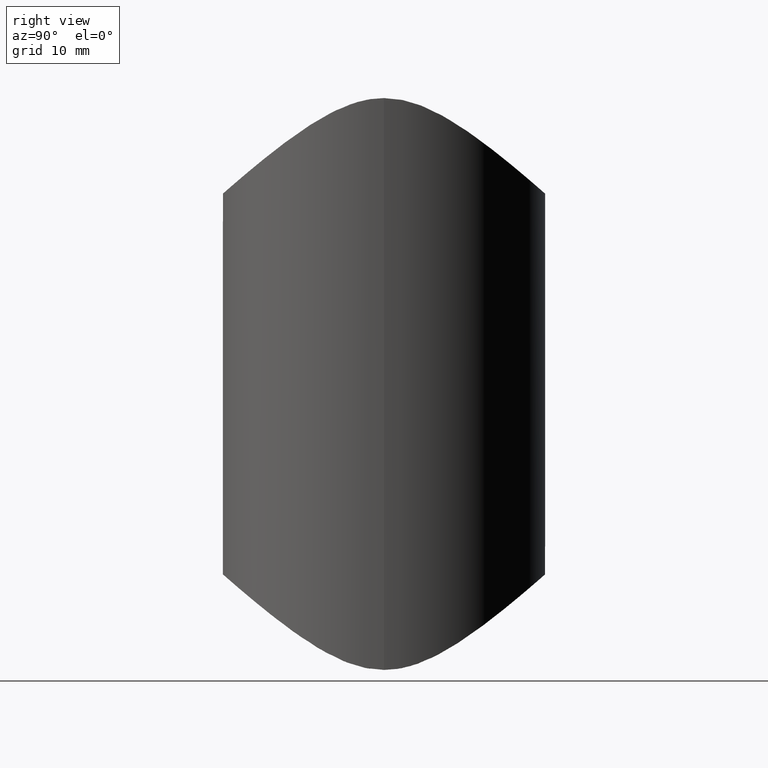
[diagram: clean part render]
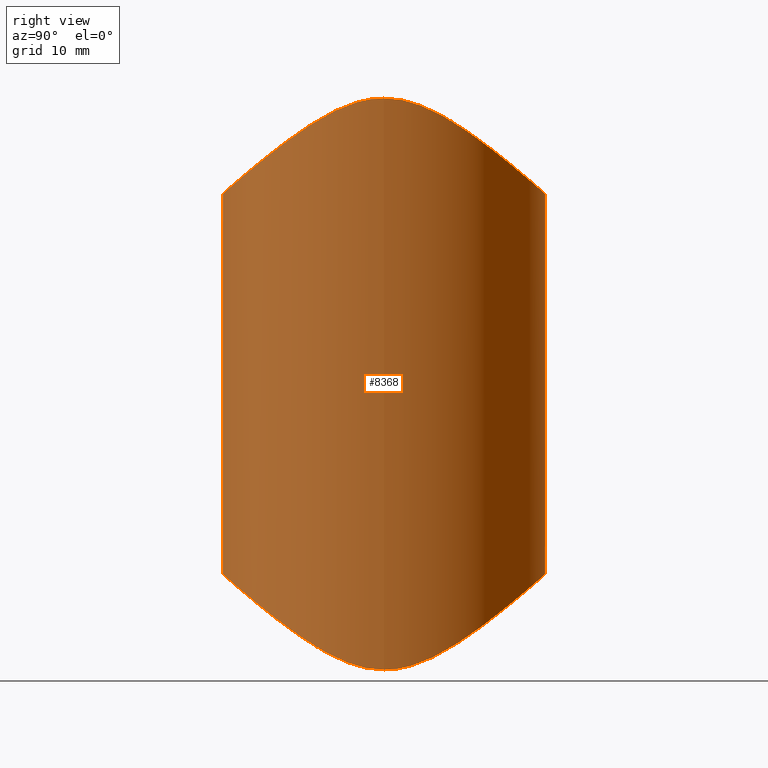
[diagram: same view with one face highlighted and labeled with its STEP entity id]
A machine part, right view. The second image highlights one B-rep face of the part: STEP entity #8368.
In plain terms, the highlighted cylindrical surface (bore or boss wall) has radius 21.2 mm, axis along (0, 0, 1).
Its self-contained STEP definition (entity closure, byte-faithful):
#28 = CARTESIAN_POINT ( 'NONE',  ( -20.45541735194242960, 5.611173856344452204, -36.30723599468177554 ) ) ;
#78 = CARTESIAN_POINT ( 'NONE',  ( 14.81171923180426475, -15.18147543748701089, -30.06661201293681884 ) ) ;
#127 = CARTESIAN_POINT ( 'NONE',  ( -20.97635834696325929, -3.158545356204248922, -37.18151495239143856 ) ) ;
#172 = CARTESIAN_POINT ( 'NONE',  ( 15.63389383173102409, 14.33342034139705312, -30.73406332649879147 ) ) ;
#212 = CARTESIAN_POINT ( 'NONE',  ( 21.14836757930289934, 1.527087688503404816, -37.48934459721699142 ) ) ;
#262 = CARTESIAN_POINT ( 'NONE',  ( -9.055718434051099663, 19.17189410041115138, -26.75941458075507384 ) ) ;
#270 = CARTESIAN_POINT ( 'NONE',  ( -18.92877723315593741, 9.635848647165380143, 34.12689449167132949 ) ) ;
#311 = CARTESIAN_POINT ( 'NONE',  ( -18.30954737960177781, 10.76482312935650754, 33.36712507464898181 ) ) ;
#360 = ORIENTED_EDGE ( 'NONE', *, *, #5655, .F. ) ;
#395 = CARTESIAN_POINT ( 'NONE',  ( -1.379351382647280300, 21.16843550293391374, 25.02773133158973096 ) ) ;
#400 = CARTESIAN_POINT ( 'NONE',  ( 20.88149335484289537, -3.678990019096605835, -37.01745075639204430 ) ) ;
#443 = CARTESIAN_POINT ( 'NONE',  ( 20.59421893871964571, 5.081957251331889580, 36.53320584653805270 ) ) ;
#493 = CARTESIAN_POINT ( 'NONE',  ( -21.17139254519066682, -1.327900722634574704, 37.53032838118427605 ) ) ;
#537 = CARTESIAN_POINT ( 'NONE',  ( 9.776366241319019323, -18.82411369512748323, 27.05708157620545151 ) ) ;
#748 = CYLINDRICAL_SURFACE ( 'NONE', #9045, 21.19999999999999929 ) ;
#764 = CARTESIAN_POINT ( 'NONE',  ( -21.06282559943587884, -2.436221136448928792, 37.33537302850128015 ) ) ;
#806 = CARTESIAN_POINT ( 'NONE',  ( 11.57557648746820256, -17.77401718948303611, 27.94502558068056430 ) ) ;
#849 = CARTESIAN_POINT ( 'NONE',  ( 2.861955765926955664, -21.01963759934508147, 25.15820244223009894 ) ) ;
#981 = CARTESIAN_POINT ( 'NONE',  ( -18.30954737960177781, -10.76482312935650754, -33.36712507464898181 ) ) ;
#1019 = CARTESIAN_POINT ( 'NONE',  ( 21.18705007545193908, -0.7651361944628329859, 37.55985221934160734 ) ) ;
#1022 = CARTESIAN_POINT ( 'NONE',  ( -19.04726911328290839, 9.403061671351830242, -34.27748823128799671 ) ) ;
#1070 = CARTESIAN_POINT ( 'NONE',  ( -3.613022005524567870, -20.89318663543611265, -25.26889897083148284 ) ) ;
#1116 = CARTESIAN_POINT ( 'NONE',  ( -19.70897052989556286, -7.837316334376738247, -35.18678288087188122 ) ) ;
#1159 = CARTESIAN_POINT ( 'NONE',  ( -19.94419146322033498, -7.219722584351009331, -35.52663442060294585 ) ) ;
#1206 = CARTESIAN_POINT ( 'NONE',  ( 20.99808804751278402, 3.012252433823545683, -37.21980758918370213 ) ) ;
#1255 = CARTESIAN_POINT ( 'NONE',  ( 19.98206215831096699, 7.115016007147703547, -35.58225467785896257 ) ) ;
#1298 = CARTESIAN_POINT ( 'NONE',  ( 17.26894050692188287, 12.31449342644356726, -32.25960162156351174 ) ) ;
#1304 = CARTESIAN_POINT ( 'NONE',  ( 21.04311487925438939, 2.600411042969253295, 37.30026941153323605 ) ) ;
#1343 = CARTESIAN_POINT ( 'NONE',  ( 0.5992993401474279169, 21.20478202979933968, -24.99580213603888978 ) ) ;
#1351 = CARTESIAN_POINT ( 'NONE',  ( -16.04934571228516660, 13.91195018205657874, 31.06685218863818321 ) ) ;
#1390 = CARTESIAN_POINT ( 'NONE',  ( 20.88157022807383711, 3.730151578770625864, -37.01460156782884070 ) ) ;
#1401 = CARTESIAN_POINT ( 'NONE',  ( 14.33064357019541823, 15.63693189086025370, 29.70180932424991838 ) ) ;
#1444 = CARTESIAN_POINT ( 'NONE',  ( -9.783719388593979716, 18.86114355684420474, 27.02669751896622685 ) ) ;
#1465 = CARTESIAN_POINT ( 'NONE',  ( 21.19999999999999929, 0.000000000000000000, -37.58356148159686683 ) ) ;
#1488 = CARTESIAN_POINT ( 'NONE',  ( 18.35738798289526841, 10.62389000726081711, 33.45083591808911905 ) ) ;
#1537 = CARTESIAN_POINT ( 'NONE',  ( -21.13600295169353060, 1.688561807819356719, 37.46692591776143644 ) ) ;
#1583 = CARTESIAN_POINT ( 'NONE',  ( -3.875882088453081575, -20.84607472227184388, 25.31010850980709748 ) ) ;
#1794 = CARTESIAN_POINT ( 'NONE',  ( -1.646797548463641236, -21.14920743253038538, 25.04461009978417962 ) ) ;
#1834 = CARTESIAN_POINT ( 'NONE',  ( -21.19613358253339896, 0.5540781783344641553, 37.57647572910654787 ) ) ;
#1879 = CARTESIAN_POINT ( 'NONE',  ( -4.244829350413260372, -20.77400722764772922, 25.37311363479035009 ) ) ;
#2013 = CARTESIAN_POINT ( 'NONE',  ( -21.18264441055352165, -0.9367163545436431038, -37.55170630820558131 ) ) ;
#2059 = CARTESIAN_POINT ( 'NONE',  ( -17.00333266243377395, 12.67859107400535912, -31.99141052322285361 ) ) ;
#2103 = CARTESIAN_POINT ( 'NONE',  ( -20.05044987211626406, 6.920175649073071256, -35.68374045013990781 ) ) ;
#2148 = CARTESIAN_POINT ( 'NONE',  ( 9.307140707012017344, -19.06107999430647126, -26.85459706639172239 ) ) ;
#2199 = CARTESIAN_POINT ( 'NONE',  ( -21.06282559943587884, 2.436221136448928792, -37.33537302850128015 ) ) ;
#2244 = CARTESIAN_POINT ( 'NONE',  ( 16.88200995086582168, 12.83973443144087412, -31.87191521375912373 ) ) ;
#2287 = CARTESIAN_POINT ( 'NONE',  ( 21.18705007545193908, 0.7651361944628329859, -37.55985221934160734 ) ) ;
#2329 = CARTESIAN_POINT ( 'NONE',  ( 20.41661273894700201, -5.749981230559308543, -36.24556862858850081 ) ) ;
#2333 = CARTESIAN_POINT ( 'NONE',  ( 20.57309299853876183, 5.129438940379522194, -36.50090606750470812 ) ) ;
#2341 = CARTESIAN_POINT ( 'NONE',  ( 9.307140707012017344, 19.06107999430647126, 26.85459706639172239 ) ) ;
#2381 = CARTESIAN_POINT ( 'NONE',  ( 1.351634497376328126, 21.17047566304135131, -25.02594095006732999 ) ) ;
#2436 = CARTESIAN_POINT ( 'NONE',  ( 20.81536095300337408, 4.035812705794620037, 36.90402268098335981 ) ) ;
#2479 = CARTESIAN_POINT ( 'NONE',  ( 19.77521756840306821, 7.669338922180779505, 35.28076052837283783 ) ) ;
#2532 = CARTESIAN_POINT ( 'NONE',  ( -3.977638343958846079, 20.82676644983990144, 25.32699950302857772 ) ) ;
#2575 = CARTESIAN_POINT ( 'NONE',  ( -20.97635834696325929, 3.158545356204248922, 37.18151495239143856 ) ) ;
#2617 = CARTESIAN_POINT ( 'NONE',  ( 17.26894050692188287, -12.31449342644356726, 32.25960162156351174 ) ) ;
#2853 = CARTESIAN_POINT ( 'NONE',  ( -11.20650900769450686, -18.00919104853148411, 27.74720752538118163 ) ) ;
#2898 = CARTESIAN_POINT ( 'NONE',  ( 14.26758304632109109, -15.73462341832112088, 29.63000989669030005 ) ) ;
#2941 = CARTESIAN_POINT ( 'NONE',  ( 18.35259929000589096, -10.69178739157260871, 33.41716637868228190 ) ) ;
#3079 = CARTESIAN_POINT ( 'NONE',  ( -20.84335338306961205, 3.888697776966783426, -36.95177541651901265 ) ) ;
#3124 = CARTESIAN_POINT ( 'NONE',  ( -15.76577616875666621, 14.18836793598355506, -30.84682178562772137 ) ) ;
#3169 = CARTESIAN_POINT ( 'NONE',  ( -13.41327811795208724, 16.47184304281853073, -29.02748098906725360 ) ) ;
#3214 = CARTESIAN_POINT ( 'NONE',  ( -21.17139254519066682, 1.327900722634574704, -37.53032838118427605 ) ) ;
#3260 = CARTESIAN_POINT ( 'NONE',  ( -2.875685406383693188, -21.00737035516542051, -25.16893772533690310 ) ) ;
#3303 = CARTESIAN_POINT ( 'NONE',  ( 14.26758304632109109, 15.73462341832112088, -29.63000989669030005 ) ) ;
#3345 = FACE_OUTER_BOUND ( 'NONE', #4485, .T. ) ;
#3392 = CARTESIAN_POINT ( 'NONE',  ( 9.146863275391043047, 19.13856882639603540, -26.78829395330530261 ) ) ;
#3401 = CARTESIAN_POINT ( 'NONE',  ( 18.02703324573771582, 11.17478347359660873, 33.07151591960013803 ) ) ;
#3431 = CARTESIAN_POINT ( 'NONE',  ( -10.30975277606171403, 18.52749846274448942, -27.30870390385972257 ) ) ;
#3439 = CARTESIAN_POINT ( 'NONE',  ( 0.8570938160425972674, 21.19576360719491959, 25.00371889231641376 ) ) ;
#3479 = CARTESIAN_POINT ( 'NONE',  ( -6.057539750127689970, 20.37040628734392200, -25.72541600823642227 ) ) ;
#3531 = CARTESIAN_POINT ( 'NONE',  ( 13.32389046653464426, 16.50317929767390623, 28.99873680058485448 ) ) ;
#3574 = CARTESIAN_POINT ( 'NONE',  ( -14.20856944367890229, 15.74784103867825991, 29.61246971191928168 ) ) ;
#3617 = CARTESIAN_POINT ( 'NONE',  ( 20.29439568384519177, -6.139549580194639589, 36.05817013806716886 ) ) ;
#3660 = CARTESIAN_POINT ( 'NONE',  ( -3.134448869397676418, -20.97037251875283204, 25.20134411886764525 ) ) ;
#3883 = CARTESIAN_POINT ( 'NONE',  ( -21.01685719160357735, -2.804839704732406069, 37.25350971382740539 ) ) ;
#3934 = CARTESIAN_POINT ( 'NONE',  ( -17.38037110746649461, -12.15634875530774472, 32.37456891561282646 ) ) ;
#3976 = CARTESIAN_POINT ( 'NONE',  ( -7.428390811851920184, -19.90728424505650196, 26.12846359776445837 ) ) ;
#4112 = CARTESIAN_POINT ( 'NONE',  ( -12.66552224037674712, -17.01437272971189074, -28.57756723657072584 ) ) ;
#4155 = CARTESIAN_POINT ( 'NONE',  ( -20.62931908667947667, 4.937671174590857248, -36.59086201277335704 ) ) ;
#4201 = CARTESIAN_POINT ( 'NONE',  ( -11.77674396363667952, 17.64079681843034919, -28.05656199386481831 ) ) ;
#4249 = CARTESIAN_POINT ( 'NONE',  ( -14.20856944367890229, -15.74784103867825991, -29.61246971191928168 ) ) ;
#4297 = CARTESIAN_POINT ( 'NONE',  ( -16.04934571228516660, -13.91195018205657874, -31.06685218863818321 ) ) ;
#4340 = CARTESIAN_POINT ( 'NONE',  ( 20.29439568384519177, 6.139549580194639589, -36.05817013806716886 ) ) ;
#4381 = CARTESIAN_POINT ( 'NONE',  ( -2.763046046473146777, 21.02250712551965961, -25.15566957285883731 ) ) ;
#4430 = CARTESIAN_POINT ( 'NONE',  ( 19.74765873688392759, 7.739758821920959875, -35.24154086413228981 ) ) ;
#4479 = CARTESIAN_POINT ( 'NONE',  ( 7.154830645487482599, 19.96954630365517147, -26.07288955469422831 ) ) ;
#4485 = EDGE_LOOP ( 'NONE', ( #360 ) ) ;
#4520 = CARTESIAN_POINT ( 'NONE',  ( 21.19740071756693922, 0.3830497548331260327, -37.57879352461026201 ) ) ;
#4528 = CARTESIAN_POINT ( 'NONE',  ( -2.875685406383693188, 21.00737035516542051, 25.16893772533690310 ) ) ;
#4568 = CARTESIAN_POINT ( 'NONE',  ( 21.19999999999999218, -1.165517335421917267E-15, 37.58356148159685262 ) ) ;
#4615 = CARTESIAN_POINT ( 'NONE',  ( -14.68694656133646248, 15.30210980942055699, 29.97042990981162802 ) ) ;
#4664 = CARTESIAN_POINT ( 'NONE',  ( -20.84335338306961205, -3.888697776966783426, 36.95177541651901265 ) ) ;
#4714 = CARTESIAN_POINT ( 'NONE',  ( 9.146863275391043047, -19.13856882639603540, 26.78829395330530261 ) ) ;
#4935 = CARTESIAN_POINT ( 'NONE',  ( -20.45541735194242960, -5.611173856344452204, 36.30723599468177554 ) ) ;
#4985 = CARTESIAN_POINT ( 'NONE',  ( 10.99019997192858256, -18.14221865893225427, 27.63512407793474068 ) ) ;
#5027 = CARTESIAN_POINT ( 'NONE',  ( -18.43835679299217034, -10.54151119859166208, 33.51897155093636371 ) ) ;
#5034 = DIRECTION ( 'NONE',  ( 1.000000000000000000, 0.000000000000000000, 0.000000000000000000 ) ) ;
#5160 = CARTESIAN_POINT ( 'NONE',  ( 1.600552284528295566, -21.15267129505330956, -25.04156937056848875 ) ) ;
#5201 = CARTESIAN_POINT ( 'NONE',  ( 20.65678568497506618, -4.781809977681583668, 36.63836350674345255 ) ) ;
#5202 = CARTESIAN_POINT ( 'NONE',  ( 11.12876944867946527, -18.05727372709984380, -27.70671522967704448 ) ) ;
#5252 = CARTESIAN_POINT ( 'NONE',  ( -14.68694656133646248, -15.30210980942055699, -29.97042990981162802 ) ) ;
#5307 = CARTESIAN_POINT ( 'NONE',  ( -20.54646411576972298, -5.272054584498059526, -36.45531200607298672 ) ) ;
#5352 = CARTESIAN_POINT ( 'NONE',  ( -7.827907481127834188, -19.71471125336513452, -26.29324697376245012 ) ) ;
#5357 = CARTESIAN_POINT ( 'NONE',  ( 16.96650338785485346, -12.77562585898297165, -31.93266644754966777 ) ) ;
#5481 = CARTESIAN_POINT ( 'NONE',  ( -1.646797548463641236, 21.14920743253038538, -25.04461009978417962 ) ) ;
#5488 = CARTESIAN_POINT ( 'NONE',  ( 11.70097173117910216, 17.69122308532080368, 28.01436057573138072 ) ) ;
#5519 = CARTESIAN_POINT ( 'NONE',  ( 10.99019997192858256, 18.14221865893225427, -27.63512407793474068 ) ) ;
#5523 = CARTESIAN_POINT ( 'NONE',  ( -5.059804035448612680, 20.60052458868202407, 25.52461701857541598 ) ) ;
#5572 = CARTESIAN_POINT ( 'NONE',  ( 20.99518966925269225, 2.962050479155550420, 37.21528062210827414 ) ) ;
#5590 = CARTESIAN_POINT ( 'NONE',  ( 21.19999999999999929, 0.000000000000000000, 37.58356148159686683 ) ) ;
#5617 = CARTESIAN_POINT ( 'NONE',  ( 3.084421250912809942, 20.98770154349920958, 25.18618267936977162 ) ) ;
#5655 = EDGE_CURVE ( 'NONE', #8568, #8568, #7539, .T. ) ;
#5657 = CARTESIAN_POINT ( 'NONE',  ( -16.86133393032115890, 12.91574079727568147, 31.82850802484505337 ) ) ;
#5701 = CARTESIAN_POINT ( 'NONE',  ( -10.00391576498438972, -18.69453692488314900, 27.16679903627293058 ) ) ;
#5747 = CARTESIAN_POINT ( 'NONE',  ( 20.39193468106632423, -5.807951388633584955, 36.21088361584384785 ) ) ;
#5763 = CARTESIAN_POINT ( 'NONE',  ( 19.25834572351406493, -8.887863037567727886, -34.57155174949588883 ) ) ;
#5960 = CARTESIAN_POINT ( 'NONE',  ( 5.052017920772577497, -20.60256207620232516, 25.52284085383190515 ) ) ;
#6006 = CARTESIAN_POINT ( 'NONE',  ( -20.62931908667947667, -4.937671174590857248, 36.59086201277335704 ) ) ;
#6045 = CARTESIAN_POINT ( 'NONE',  ( 16.06516379777914594, -13.84816061437718560, 31.10990615289966499 ) ) ;
#6162 = VERTEX_POINT ( 'NONE', #1465 ) ;
#6167 = CARTESIAN_POINT ( 'NONE',  ( -18.92877723315593741, -9.635848647165380143, -34.12689449167132949 ) ) ;
#6210 = CARTESIAN_POINT ( 'NONE',  ( 21.19999999999999218, -1.165517335421917267E-15, 37.58356148159685262 ) ) ;
#6211 = CARTESIAN_POINT ( 'NONE',  ( -21.10295424153486010, -2.059448189816758035, -37.40711882720225390 ) ) ;
#6263 = CARTESIAN_POINT ( 'NONE',  ( -16.86133393032115890, -12.91574079727568147, -31.82850802484505337 ) ) ;
#6303 = CARTESIAN_POINT ( 'NONE',  ( 3.084421250912809942, -20.98770154349920958, -25.18618267936977162 ) ) ;
#6347 = CARTESIAN_POINT ( 'NONE',  ( 5.762301184145830923, 20.41495202547941901, -25.68640025201506205 ) ) ;
#6396 = CARTESIAN_POINT ( 'NONE',  ( 13.26122689838577884, 16.59694229147575228, -28.92496586617463805 ) ) ;
#6435 = CARTESIAN_POINT ( 'NONE',  ( -3.875882088453081575, 20.84607472227184388, -25.31010850980709748 ) ) ;
#6444 = CARTESIAN_POINT ( 'NONE',  ( 21.04311487925438939, -2.600411042969253295, -37.30026941153323605 ) ) ;
#6450 = B_SPLINE_CURVE_WITH_KNOTS ( 'NONE', 3,
 ( #12785, #6614, #9714, #6444, #10851, #400, #8898, #8260, #2329, #13199, #11767, #5763, #8899, #12873, #7013, #5357, #9389, #78, #12334, #8266, #12471, #11287, #5202, #8362, #2148, #11429, #9347, #12382, #6303, #5160, #11330, #11475, #7148, #13344, #3260, #1070, #10443, #7288, #10398, #12425, #5352, #12523, #7233, #4112, #13304, #4249, #5252, #4297, #6263, #981, #6167, #1116, #1159, #11380, #5307, #9209, #127, #6211, #8180, #2013, #7333, #8317, #3214, #2199, #7194, #10310, #3079, #4155, #28, #2103, #10264, #1022, #10349, #8221, #2059, #9254, #3124, #9302, #3169, #4201, #10483, #3431, #12568, #8456, #262, #11614, #3479, #9528, #6435, #10617, #4381, #5481, #9488, #1343, #2381, #11654, #10574, #11524, #6347, #4479, #10660, #3392, #9441, #5519, #8503, #6396, #3303, #172, #12659, #2244, #1298, #7464, #9575, #4430, #1255, #4340, #7372, #2333, #8537, #1390, #1206, #6478, #212, #7415, #2287, #4520, #12704, #8406 ),
 .UNSPECIFIED., .T., .F.,
 ( 4, 2, 2, 2, 2, 2, 2, 2, 2, 2, 2, 2, 2, 2, 2, 2, 2, 2, 2, 2, 2, 2, 2, 2, 2, 2, 2, 2, 2, 2, 2, 2, 2, 2, 2, 2, 2, 2, 2, 2, 2, 2, 2, 2, 2, 2, 2, 2, 2, 2, 2, 2, 2, 2, 2, 2, 2, 2, 2, 2, 2, 2, 2, 4 ),
 ( 0.000000000000000000, 0.002241287828992627809, 0.003361931743488943015, 0.004482575657985257353, 0.006723863486977876489, 0.008965151315970497359, 0.01120643914496311476, 0.01344772697395573216, 0.01793030263194097043, 0.02017159046093358957, 0.02241287828992620870, 0.02465416611891882784, 0.02689545394791144697, 0.03137802960589668871, 0.03361931743488930785, 0.03586060526388192699, 0.03810189309287454612, 0.03922253700737084875, 0.04034318092186715832, 0.04258446875085977745, 0.04482575657985239659, 0.04930833223783762098, 0.05154962006683024706, 0.05379090789582286619, 0.05827348355380809058, 0.06275605921179332192, 0.06499734704078592717, 0.06723863486977853243, 0.06947992269877115157, 0.07060056661326745420, 0.07172121052776375683, 0.07396249835675636208, 0.07508314227125266471, 0.07620378618574895346, 0.07844507401474155872, 0.08068636184373415010, 0.08516893750171937449, 0.08741022533071196587, 0.08965151315970457113, 0.09413408881768976777, 0.09637537664668238691, 0.09749602056117870341, 0.09861666447567500604, 0.1030992401336602443, 0.1042198840481565608, 0.1053405279626528496, 0.1075818157916454548, 0.1098231036206380878, 0.1120643914496306931, 0.1143056792786232845, 0.1165469671076158897, 0.1187882549366084811, 0.1210295427656010725, 0.1255121184235862830, 0.1277534062525788883, 0.1299946940815714935, 0.1344772697395567040, 0.1367185575685493093, 0.1378392014830456258, 0.1389598453975419146, 0.1412011332265345198, 0.1423217771410308086, 0.1428820990982789807, 0.1434424210555271251 ),
 .UNSPECIFIED. ) ;
#6478 = CARTESIAN_POINT ( 'NONE',  ( 21.11770560777527095, 1.902853503920015399, -37.43370011411939657 ) ) ;
#6486 = CARTESIAN_POINT ( 'NONE',  ( 1.600552284528295566, 21.15267129505330956, 25.04156937056848875 ) ) ;
#6534 = CARTESIAN_POINT ( 'NONE',  ( -10.98734972168234592, 18.18173473906200499, 27.60533894899644380 ) ) ;
#6576 = CARTESIAN_POINT ( 'NONE',  ( 20.00715471155248792, 7.043729142430194656, 35.61943515223384082 ) ) ;
#6614 = CARTESIAN_POINT ( 'NONE',  ( 21.19999999999999218, -0.7607316018210188435, -37.58356148159684551 ) ) ;
#6621 = CARTESIAN_POINT ( 'NONE',  ( 21.19999999999999218, 0.7607316018210188435, 37.58356148159684551 ) ) ;
#6632 = ORIENTED_EDGE ( 'NONE', *, *, #11686, .F. ) ;
#6662 = CARTESIAN_POINT ( 'NONE',  ( -20.54646411576972298, 5.272054584498059526, 36.45531200607298672 ) ) ;
#6713 = CARTESIAN_POINT ( 'NONE',  ( -20.05044987211626406, -6.920175649073071256, 35.68374045013990781 ) ) ;
#6755 = CARTESIAN_POINT ( 'NONE',  ( -6.057539750127689970, -20.37040628734392200, 25.72541600823642227 ) ) ;
#6976 = CARTESIAN_POINT ( 'NONE',  ( 7.838284737744062980, -19.71068788427852425, 26.29672239114204757 ) ) ;
#7013 = CARTESIAN_POINT ( 'NONE',  ( 18.02703324573771582, -11.17478347359660873, -33.07151591960013803 ) ) ;
#7018 = CARTESIAN_POINT ( 'NONE',  ( 0.5992993401474279169, -21.20478202979933968, 24.99580213603888978 ) ) ;
#7061 = CARTESIAN_POINT ( 'NONE',  ( 20.99808804751278402, -3.012252433823545683, 37.21980758918370213 ) ) ;
#7148 = CARTESIAN_POINT ( 'NONE',  ( -1.379351382647280300, -21.16843550293391374, -25.02773133158973096 ) ) ;
#7193 = CARTESIAN_POINT ( 'NONE',  ( 21.17929872054909879, -0.9558596785980422172, 37.54567905352975998 ) ) ;
#7194 = CARTESIAN_POINT ( 'NONE',  ( -21.01685719160357735, 2.804839704732406069, -37.25350971382740539 ) ) ;
#7208 = EDGE_LOOP ( 'NONE', ( #6632 ) ) ;
#7233 = CARTESIAN_POINT ( 'NONE',  ( -10.98734972168234592, -18.18173473906200499, -27.60533894899644380 ) ) ;
#7288 = CARTESIAN_POINT ( 'NONE',  ( -5.059804035448612680, -20.60052458868202407, -25.52461701857541598 ) ) ;
#7333 = CARTESIAN_POINT ( 'NONE',  ( -21.19613358253339896, -0.5540781783344641553, -37.57647572910654787 ) ) ;
#7372 = CARTESIAN_POINT ( 'NONE',  ( 20.39193468106632423, 5.807951388633584955, -36.21088361584384785 ) ) ;
#7415 = CARTESIAN_POINT ( 'NONE',  ( 21.17929872054909879, 0.9558596785980422172, -37.54567905352975998 ) ) ;
#7464 = CARTESIAN_POINT ( 'NONE',  ( 18.35259929000589096, 10.69178739157260871, -33.41716637868228190 ) ) ;
#7472 = CARTESIAN_POINT ( 'NONE',  ( 14.81171923180426475, 15.18147543748701089, 30.06661201293681884 ) ) ;
#7515 = CARTESIAN_POINT ( 'NONE',  ( -19.94419146322033498, 7.219722584351009331, 35.52663442060294585 ) ) ;
#7539 = B_SPLINE_CURVE_WITH_KNOTS ( 'NONE', 3,
 ( #4568, #6621, #9586, #1304, #5572, #10582, #2436, #443, #12846, #6576, #2479, #11621, #11661, #1488, #3401, #7555, #9722, #7472, #1401, #3531, #9631, #5488, #7646, #9537, #2341, #11751, #12755, #11795, #5617, #6486, #3439, #10668, #395, #10755, #4528, #11710, #2532, #5523, #7596, #12710, #8632, #1444, #6534, #12667, #9675, #3574, #4615, #1351, #5657, #311, #270, #8508, #7515, #8542, #6662, #13136, #2575, #11838, #1537, #10800, #1834, #12100, #493, #764, #3883, #10085, #4664, #6006, #4935, #6713, #7741, #12887, #5027, #3934, #8717, #13177, #9026, #8046, #7957, #9771, #2853, #10129, #5701, #8759, #10040, #3976, #6755, #1879, #1583, #3660, #11111, #1794, #11074, #7018, #9075, #849, #9814, #5960, #7694, #8987, #6976, #4714, #537, #4985, #806, #12194, #2898, #8004, #6045, #12143, #2617, #2941, #10843, #11877, #11155, #3617, #5747, #12921, #5201, #10213, #7061, #12333, #12424, #7193, #1019, #12281, #9127, #6210 ),
 .UNSPECIFIED., .T., .F.,
 ( 4, 2, 2, 2, 2, 2, 2, 2, 2, 2, 2, 2, 2, 2, 2, 2, 2, 2, 2, 2, 2, 2, 2, 2, 2, 2, 2, 2, 2, 2, 2, 2, 2, 2, 2, 2, 2, 2, 2, 2, 2, 2, 2, 2, 2, 2, 2, 2, 2, 2, 2, 2, 2, 2, 2, 2, 2, 2, 2, 2, 2, 2, 2, 4 ),
 ( 0.000000000000000000, 0.002241287828992627809, 0.003361931743488943015, 0.004482575657985257353, 0.006723863486977876489, 0.008965151315970497359, 0.01120643914496311476, 0.01344772697395573216, 0.01793030263194097043, 0.02017159046093358957, 0.02241287828992620870, 0.02465416611891882784, 0.02689545394791144697, 0.03137802960589668871, 0.03361931743488930785, 0.03586060526388192699, 0.03810189309287454612, 0.03922253700737084875, 0.04034318092186715832, 0.04258446875085977745, 0.04482575657985239659, 0.04930833223783762098, 0.05154962006683024706, 0.05379090789582286619, 0.05827348355380809058, 0.06275605921179332192, 0.06499734704078592717, 0.06723863486977853243, 0.06947992269877115157, 0.07060056661326745420, 0.07172121052776375683, 0.07396249835675636208, 0.07508314227125266471, 0.07620378618574895346, 0.07844507401474155872, 0.08068636184373415010, 0.08516893750171937449, 0.08741022533071196587, 0.08965151315970457113, 0.09413408881768976777, 0.09637537664668238691, 0.09749602056117870341, 0.09861666447567500604, 0.1030992401336602443, 0.1042198840481565608, 0.1053405279626528496, 0.1075818157916454548, 0.1098231036206380878, 0.1120643914496306931, 0.1143056792786232845, 0.1165469671076158897, 0.1187882549366084811, 0.1210295427656010725, 0.1255121184235862830, 0.1277534062525788883, 0.1299946940815714935, 0.1344772697395567040, 0.1367185575685493093, 0.1378392014830456258, 0.1389598453975419146, 0.1412011332265345198, 0.1423217771410308086, 0.1428820990982789807, 0.1434424210555271251 ),
 .UNSPECIFIED. ) ;
#7555 = CARTESIAN_POINT ( 'NONE',  ( 16.96650338785485346, 12.77562585898297165, 31.93266644754966777 ) ) ;
#7596 = CARTESIAN_POINT ( 'NONE',  ( -5.765700953092395054, 20.41380111013800303, 25.68739766642772082 ) ) ;
#7646 = CARTESIAN_POINT ( 'NONE',  ( 11.12876944867946527, 18.05727372709984380, 27.70671522967704448 ) ) ;
#7694 = CARTESIAN_POINT ( 'NONE',  ( 5.762301184145830923, -20.41495202547941901, 25.68640025201506205 ) ) ;
#7741 = CARTESIAN_POINT ( 'NONE',  ( -19.81796637703257957, -7.558585585020083819, 35.34193712264892184 ) ) ;
#7957 = CARTESIAN_POINT ( 'NONE',  ( -13.41327811795208724, -16.47184304281853073, 29.02748098906725360 ) ) ;
#8004 = CARTESIAN_POINT ( 'NONE',  ( 15.63389383173102409, -14.33342034139705312, 30.73406332649879147 ) ) ;
#8046 = CARTESIAN_POINT ( 'NONE',  ( -14.40607568455914489, -15.60842448588200604, 29.73192576045749647 ) ) ;
#8092 = DIRECTION ( 'NONE',  ( 0.000000000000000000, 0.000000000000000000, 1.000000000000000000 ) ) ;
#8180 = CARTESIAN_POINT ( 'NONE',  ( -21.13600295169353060, -1.688561807819356719, -37.46692591776143644 ) ) ;
#8221 = CARTESIAN_POINT ( 'NONE',  ( -17.38037110746649461, 12.15634875530774472, -32.37456891561282646 ) ) ;
#8260 = CARTESIAN_POINT ( 'NONE',  ( 20.59421893871964571, -5.081957251331889580, -36.53320584653805270 ) ) ;
#8266 = CARTESIAN_POINT ( 'NONE',  ( 13.32389046653464426, -16.50317929767390623, -28.99873680058485448 ) ) ;
#8317 = CARTESIAN_POINT ( 'NONE',  ( -21.20554532945918780, 0.5806661566480848524, -37.59372383202575207 ) ) ;
#8362 = CARTESIAN_POINT ( 'NONE',  ( 9.932899202193427257, -18.74172236845739903, -27.12725074787230284 ) ) ;
#8368 = ADVANCED_FACE ( 'NONE', ( #8789, #3345 ), #748, .T. ) ;
#8406 = CARTESIAN_POINT ( 'NONE',  ( 21.19999999999999218, 1.165517335421917267E-15, -37.58356148159685262 ) ) ;
#8456 = CARTESIAN_POINT ( 'NONE',  ( -9.377422683829406580, 19.01651874759216554, -26.89234066544022994 ) ) ;
#8503 = CARTESIAN_POINT ( 'NONE',  ( 11.57557648746820256, 17.77401718948303611, -27.94502558068056430 ) ) ;
#8508 = CARTESIAN_POINT ( 'NONE',  ( -19.70897052989556286, 7.837316334376738247, 35.18678288087188122 ) ) ;
#8537 = CARTESIAN_POINT ( 'NONE',  ( 20.65678568497506618, 4.781809977681583668, -36.63836350674345255 ) ) ;
#8542 = CARTESIAN_POINT ( 'NONE',  ( -20.36288625874305680, 5.937005181913790786, 36.16078424057156582 ) ) ;
#8568 = VERTEX_POINT ( 'NONE', #5590 ) ;
#8632 = CARTESIAN_POINT ( 'NONE',  ( -7.827907481127834188, 19.71471125336513452, 26.29324697376245012 ) ) ;
#8717 = CARTESIAN_POINT ( 'NONE',  ( -17.00333266243377395, -12.67859107400535912, 31.99141052322285361 ) ) ;
#8759 = CARTESIAN_POINT ( 'NONE',  ( -9.377422683829406580, -19.01651874759216554, 26.89234066544022994 ) ) ;
#8789 = FACE_OUTER_BOUND ( 'NONE', #7208, .T. ) ;
#8898 = CARTESIAN_POINT ( 'NONE',  ( 20.81536095300337408, -4.035812705794620037, -36.90402268098335981 ) ) ;
#8899 = CARTESIAN_POINT ( 'NONE',  ( 18.97254326586879358, -9.481736890763244219, -34.20008199186212039 ) ) ;
#8987 = CARTESIAN_POINT ( 'NONE',  ( 7.154830645487482599, -19.96954630365517147, 26.07288955469422831 ) ) ;
#9026 = CARTESIAN_POINT ( 'NONE',  ( -15.76577616875666621, -14.18836793598355506, 30.84682178562772137 ) ) ;
#9045 = AXIS2_PLACEMENT_3D ( 'NONE', #12291, #8092, #5034 ) ;
#9075 = CARTESIAN_POINT ( 'NONE',  ( 1.351634497376328126, -21.17047566304135131, 25.02594095006732999 ) ) ;
#9127 = CARTESIAN_POINT ( 'NONE',  ( 21.19999999999999218, -0.1901829004552480495, 37.58356148159685262 ) ) ;
#9209 = CARTESIAN_POINT ( 'NONE',  ( -20.85511948945991278, -3.875014617119520111, -36.96901966161519937 ) ) ;
#9254 = CARTESIAN_POINT ( 'NONE',  ( -16.19715647493499233, 13.69350632152725922, -31.22843096745083002 ) ) ;
#9302 = CARTESIAN_POINT ( 'NONE',  ( -14.40607568455914489, 15.60842448588200604, -29.73192576045749647 ) ) ;
#9347 = CARTESIAN_POINT ( 'NONE',  ( 5.989666282539714892, -20.38969150912195616, -25.70862212893256782 ) ) ;
#9389 = CARTESIAN_POINT ( 'NONE',  ( 16.16775112329284525, -13.77464031684856671, -31.17259144699612250 ) ) ;
#9441 = CARTESIAN_POINT ( 'NONE',  ( 9.776366241319019323, 18.82411369512748323, -27.05708157620545151 ) ) ;
#9488 = CARTESIAN_POINT ( 'NONE',  ( -0.8999169650052972758, 21.19415226156729304, -25.00513339016800884 ) ) ;
#9528 = CARTESIAN_POINT ( 'NONE',  ( -4.244829350413260372, 20.77400722764772922, -25.37311363479035009 ) ) ;
#9537 = CARTESIAN_POINT ( 'NONE',  ( 9.932899202193427257, 18.74172236845739903, 27.12725074787230284 ) ) ;
#9575 = CARTESIAN_POINT ( 'NONE',  ( 18.96977030825058819, 9.556326872388803295, -34.17864872690723388 ) ) ;
#9586 = CARTESIAN_POINT ( 'NONE',  ( 21.15925873928341261, 1.505010053001367698, 37.50811591850236937 ) ) ;
#9631 = CARTESIAN_POINT ( 'NONE',  ( 12.79854085659568064, 16.91417942586903678, 28.66036005029366862 ) ) ;
#9675 = CARTESIAN_POINT ( 'NONE',  ( -13.19870381461336528, 16.60337798851292845, 28.91654372066829382 ) ) ;
#9714 = CARTESIAN_POINT ( 'NONE',  ( 21.15925873928341261, -1.505010053001367698, -37.50811591850236937 ) ) ;
#9722 = CARTESIAN_POINT ( 'NONE',  ( 16.16775112329284525, 13.77464031684856671, 31.17259144699612250 ) ) ;
#9771 = CARTESIAN_POINT ( 'NONE',  ( -11.77674396363667952, -17.64079681843034919, 28.05656199386481831 ) ) ;
#9814 = CARTESIAN_POINT ( 'NONE',  ( 3.602050574966647822, -20.90487217925429420, 25.25877219468317136 ) ) ;
#10040 = CARTESIAN_POINT ( 'NONE',  ( -9.055718434051099663, -19.17189410041115138, 26.75941458075507384 ) ) ;
#10085 = CARTESIAN_POINT ( 'NONE',  ( -20.90685473131000549, -3.532539769826045006, 37.06123692906679423 ) ) ;
#10129 = CARTESIAN_POINT ( 'NONE',  ( -10.30975277606171403, -18.52749846274448942, 27.30870390385972257 ) ) ;
#10213 = CARTESIAN_POINT ( 'NONE',  ( 20.88157022807383711, -3.730151578770625864, 37.01460156782884070 ) ) ;
#10264 = CARTESIAN_POINT ( 'NONE',  ( -19.81796637703257957, 7.558585585020083819, -35.34193712264892184 ) ) ;
#10310 = CARTESIAN_POINT ( 'NONE',  ( -20.90685473131000549, 3.532539769826045006, -37.06123692906679423 ) ) ;
#10349 = CARTESIAN_POINT ( 'NONE',  ( -18.43835679299217034, 10.54151119859166208, -33.51897155093636371 ) ) ;
#10398 = CARTESIAN_POINT ( 'NONE',  ( -5.765700953092395054, -20.41380111013800303, -25.68739766642772082 ) ) ;
#10443 = CARTESIAN_POINT ( 'NONE',  ( -3.977638343958846079, -20.82676644983990144, -25.32699950302857772 ) ) ;
#10483 = CARTESIAN_POINT ( 'NONE',  ( -11.20650900769450686, 18.00919104853148411, -27.74720752538118163 ) ) ;
#10574 = CARTESIAN_POINT ( 'NONE',  ( 3.602050574966647822, 20.90487217925429420, -25.25877219468317136 ) ) ;
#10582 = CARTESIAN_POINT ( 'NONE',  ( 20.88149335484289537, 3.678990019096605835, 37.01745075639204430 ) ) ;
#10617 = CARTESIAN_POINT ( 'NONE',  ( -3.134448869397676418, 20.97037251875283204, -25.20134411886764525 ) ) ;
#10660 = CARTESIAN_POINT ( 'NONE',  ( 7.838284737744062980, 19.71068788427852425, -26.29672239114204757 ) ) ;
#10668 = CARTESIAN_POINT ( 'NONE',  ( -0.6328581008026483712, 21.20364344460251615, 24.99680162452549581 ) ) ;
#10755 = CARTESIAN_POINT ( 'NONE',  ( -2.501427200603759449, 21.05526489811396829, 25.12696207914109081 ) ) ;
#10800 = CARTESIAN_POINT ( 'NONE',  ( -21.18264441055352165, 0.9367163545436431038, 37.55170630820558131 ) ) ;
#10843 = CARTESIAN_POINT ( 'NONE',  ( 18.96977030825058819, -9.556326872388803295, 34.17864872690723388 ) ) ;
#10851 = CARTESIAN_POINT ( 'NONE',  ( 20.99518966925269225, -2.962050479155550420, -37.21528062210827414 ) ) ;
#11074 = CARTESIAN_POINT ( 'NONE',  ( -0.8999169650052972758, -21.19415226156729304, 25.00513339016800884 ) ) ;
#11111 = CARTESIAN_POINT ( 'NONE',  ( -2.763046046473146777, -21.02250712551965961, 25.15566957285883731 ) ) ;
#11155 = CARTESIAN_POINT ( 'NONE',  ( 19.98206215831096699, -7.115016007147703547, 35.58225467785896257 ) ) ;
#11287 = CARTESIAN_POINT ( 'NONE',  ( 11.70097173117910216, -17.69122308532080368, -28.01436057573138072 ) ) ;
#11330 = CARTESIAN_POINT ( 'NONE',  ( 0.8570938160425972674, -21.19576360719491959, -25.00371889231641376 ) ) ;
#11380 = CARTESIAN_POINT ( 'NONE',  ( -20.36288625874305680, -5.937005181913790786, -36.16078424057156582 ) ) ;
#11429 = CARTESIAN_POINT ( 'NONE',  ( 7.355998353420197589, -19.93388680068090579, -26.10540782151363004 ) ) ;
#11475 = CARTESIAN_POINT ( 'NONE',  ( -0.6328581008026483712, -21.20364344460251615, -24.99680162452549581 ) ) ;
#11524 = CARTESIAN_POINT ( 'NONE',  ( 5.052017920772577497, 20.60256207620232516, -25.52284085383190515 ) ) ;
#11614 = CARTESIAN_POINT ( 'NONE',  ( -7.428390811851920184, 19.90728424505650196, -26.12846359776445837 ) ) ;
#11621 = CARTESIAN_POINT ( 'NONE',  ( 19.25834572351406493, 8.887863037567727886, 34.57155174949588883 ) ) ;
#11654 = CARTESIAN_POINT ( 'NONE',  ( 2.861955765926955664, 21.01963759934508147, -25.15820244223009894 ) ) ;
#11661 = CARTESIAN_POINT ( 'NONE',  ( 18.97254326586879358, 9.481736890763244219, 34.20008199186212039 ) ) ;
#11686 = EDGE_CURVE ( 'NONE', #6162, #6162, #6450, .T. ) ;
#11710 = CARTESIAN_POINT ( 'NONE',  ( -3.613022005524567870, 20.89318663543611265, 25.26889897083148284 ) ) ;
#11751 = CARTESIAN_POINT ( 'NONE',  ( 7.355998353420197589, 19.93388680068090579, 26.10540782151363004 ) ) ;
#11767 = CARTESIAN_POINT ( 'NONE',  ( 19.77521756840306821, -7.669338922180779505, -35.28076052837283783 ) ) ;
#11795 = CARTESIAN_POINT ( 'NONE',  ( 3.828703173773328583, 20.86444194102674743, 25.29415204452525856 ) ) ;
#11838 = CARTESIAN_POINT ( 'NONE',  ( -21.10295424153486010, 2.059448189816758035, 37.40711882720225390 ) ) ;
#11877 = CARTESIAN_POINT ( 'NONE',  ( 19.74765873688392759, -7.739758821920959875, 35.24154086413228981 ) ) ;
#12100 = CARTESIAN_POINT ( 'NONE',  ( -21.20554532945918780, -0.5806661566480848524, 37.59372383202575207 ) ) ;
#12143 = CARTESIAN_POINT ( 'NONE',  ( 16.88200995086582168, -12.83973443144087412, 31.87191521375912373 ) ) ;
#12194 = CARTESIAN_POINT ( 'NONE',  ( 13.26122689838577884, -16.59694229147575228, 28.92496586617463805 ) ) ;
#12281 = CARTESIAN_POINT ( 'NONE',  ( 21.19740071756693922, -0.3830497548331260327, 37.57879352461026201 ) ) ;
#12291 = CARTESIAN_POINT ( 'NONE',  ( 0.000000000000000000, 0.000000000000000000, -46.00000000000000000 ) ) ;
#12333 = CARTESIAN_POINT ( 'NONE',  ( 21.11770560777527095, -1.902853503920015399, 37.43370011411939657 ) ) ;
#12334 = CARTESIAN_POINT ( 'NONE',  ( 14.33064357019541823, -15.63693189086025370, -29.70180932424991838 ) ) ;
#12382 = CARTESIAN_POINT ( 'NONE',  ( 3.828703173773328583, -20.86444194102674743, -25.29415204452525856 ) ) ;
#12424 = CARTESIAN_POINT ( 'NONE',  ( 21.14836757930289934, -1.527087688503404816, 37.48934459721699142 ) ) ;
#12425 = CARTESIAN_POINT ( 'NONE',  ( -7.148069708100683428, -19.97177214703031822, -26.07095939619726366 ) ) ;
#12471 = CARTESIAN_POINT ( 'NONE',  ( 12.79854085659568064, -16.91417942586903678, -28.66036005029366862 ) ) ;
#12523 = CARTESIAN_POINT ( 'NONE',  ( -9.783719388593979716, -18.86114355684420474, -27.02669751896622685 ) ) ;
#12568 = CARTESIAN_POINT ( 'NONE',  ( -10.00391576498438972, 18.69453692488314900, -27.16679903627293058 ) ) ;
#12659 = CARTESIAN_POINT ( 'NONE',  ( 16.06516379777914594, 13.84816061437718560, -31.10990615289966499 ) ) ;
#12667 = CARTESIAN_POINT ( 'NONE',  ( -12.66552224037674712, 17.01437272971189074, 28.57756723657072584 ) ) ;
#12704 = CARTESIAN_POINT ( 'NONE',  ( 21.19999999999999218, 0.1901829004552480495, -37.58356148159685262 ) ) ;
#12710 = CARTESIAN_POINT ( 'NONE',  ( -7.148069708100683428, 19.97177214703031822, 26.07095939619726366 ) ) ;
#12755 = CARTESIAN_POINT ( 'NONE',  ( 5.989666282539714892, 20.38969150912195616, 25.70862212893256782 ) ) ;
#12785 = CARTESIAN_POINT ( 'NONE',  ( 21.19999999999999218, 1.165517335421917267E-15, -37.58356148159685262 ) ) ;
#12846 = CARTESIAN_POINT ( 'NONE',  ( 20.41661273894700201, 5.749981230559308543, 36.24556862858850081 ) ) ;
#12873 = CARTESIAN_POINT ( 'NONE',  ( 18.35738798289526841, -10.62389000726081711, -33.45083591808911905 ) ) ;
#12887 = CARTESIAN_POINT ( 'NONE',  ( -19.04726911328290839, -9.403061671351830242, 34.27748823128799671 ) ) ;
#12921 = CARTESIAN_POINT ( 'NONE',  ( 20.57309299853876183, -5.129438940379522194, 36.50090606750470812 ) ) ;
#13136 = CARTESIAN_POINT ( 'NONE',  ( -20.85511948945991278, 3.875014617119520111, 36.96901966161519937 ) ) ;
#13177 = CARTESIAN_POINT ( 'NONE',  ( -16.19715647493499233, -13.69350632152725922, 31.22843096745083002 ) ) ;
#13199 = CARTESIAN_POINT ( 'NONE',  ( 20.00715471155248792, -7.043729142430194656, -35.61943515223384082 ) ) ;
#13304 = CARTESIAN_POINT ( 'NONE',  ( -13.19870381461336528, -16.60337798851292845, -28.91654372066829382 ) ) ;
#13344 = CARTESIAN_POINT ( 'NONE',  ( -2.501427200603759449, -21.05526489811396829, -25.12696207914109081 ) ) ;